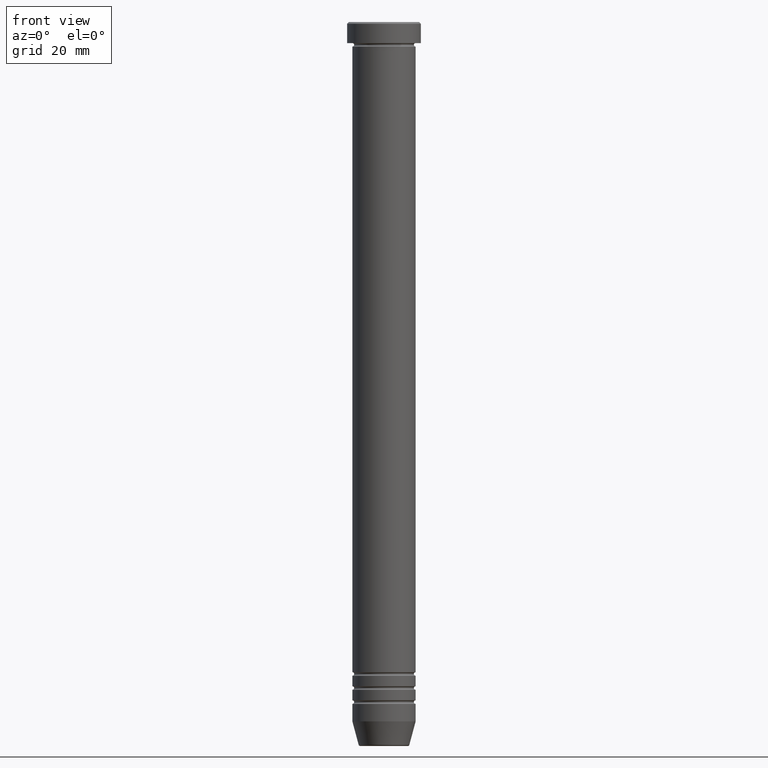
[diagram: clean part render]
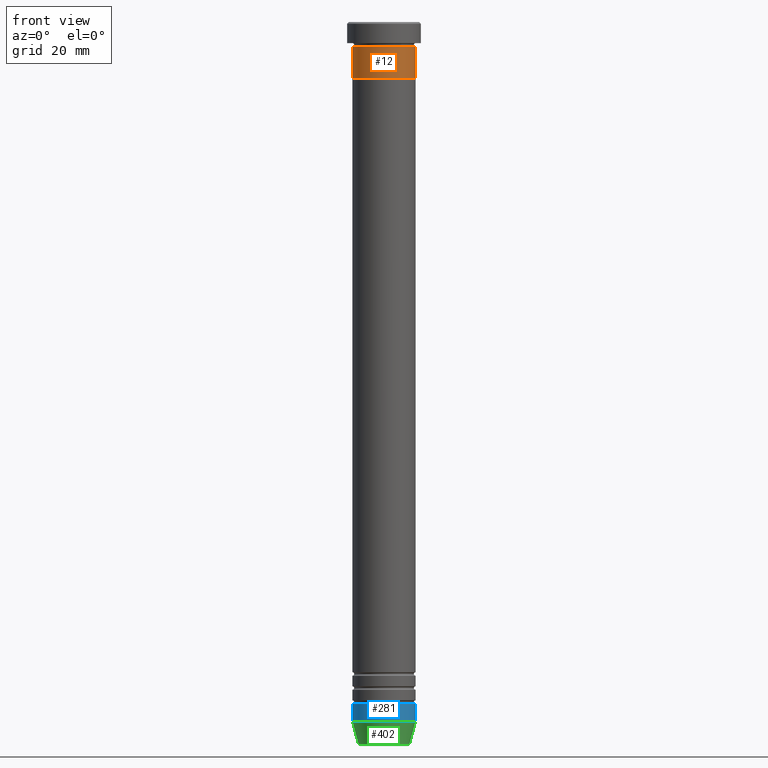
[diagram: same view with three faces highlighted in distinct colors, each labeled with its STEP entity id]
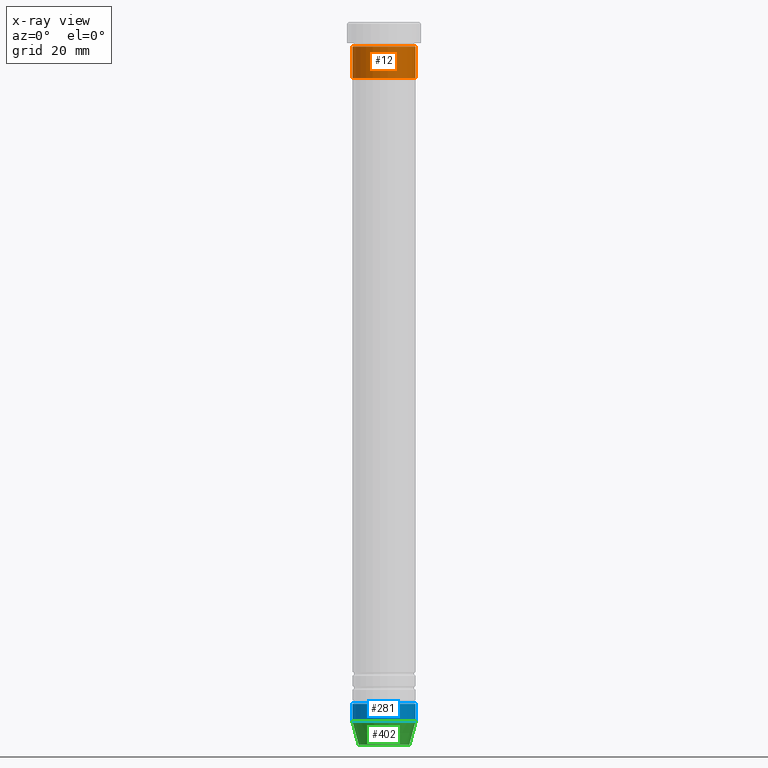
[diagram: x-ray of the same camera — body ghosted, the three highlighted faces saturated]
A machine part, front view with three faces highlighted in distinct colors.
The next image is the same camera in x-ray (body ghosted, the three faces saturated) — at least one of them is partly hidden behind the body in this view.
Their STEP definitions:

[orange] entity #12 — the highlighted cylindrical surface (edge-blend (fillet) strip) has radius 9 mm, axis along (-0, -0, 1).
#12 = ADVANCED_FACE ( 'NONE', ( #173 ), #73, .T. ) ;
#71 = DIRECTION ( 'NONE',  ( -0.000000000000000000, -0.000000000000000000, 1.000000000000000000 ) ) ;
#72 = EDGE_CURVE ( 'NONE', #343, #917, #1103, .T. ) ;
#73 = CYLINDRICAL_SURFACE ( 'NONE', #718, 9.000000000000000000 ) ;
#133 = VECTOR ( 'NONE', #71, 1000.000000000000000 ) ;
#173 = FACE_OUTER_BOUND ( 'NONE', #230, .T. ) ;
#208 = CARTESIAN_POINT ( 'NONE',  ( 9.000000000000000000, 0.000000000000000000, -16.00000000000000000 ) ) ;
#212 = ORIENTED_EDGE ( 'NONE', *, *, #815, .F. ) ;
#230 = EDGE_LOOP ( 'NONE', ( #443, #655, #996, #212 ) ) ;
#250 = VERTEX_POINT ( 'NONE', #469 ) ;
#272 = DIRECTION ( 'NONE',  ( 1.000000000000000000, 0.000000000000000000, 0.000000000000000000 ) ) ;
#309 = DIRECTION ( 'NONE',  ( 1.000000000000000000, 0.000000000000000000, 0.000000000000000000 ) ) ;
#343 = VERTEX_POINT ( 'NONE', #1025 ) ;
#350 = CARTESIAN_POINT ( 'NONE',  ( 0.000000000000000000, 0.000000000000000000, -7.000000000000000000 ) ) ;
#399 = DIRECTION ( 'NONE',  ( -0.000000000000000000, -0.000000000000000000, 1.000000000000000000 ) ) ;
#429 = CARTESIAN_POINT ( 'NONE',  ( 0.000000000000000000, 0.000000000000000000, 0.000000000000000000 ) ) ;
#443 = ORIENTED_EDGE ( 'NONE', *, *, #1129, .F. ) ;
#469 = CARTESIAN_POINT ( 'NONE',  ( 9.000000000000000000, 0.000000000000000000, -7.000000000000000000 ) ) ;
#530 = DIRECTION ( 'NONE',  ( -0.000000000000000000, -0.000000000000000000, 1.000000000000000000 ) ) ;
#572 = AXIS2_PLACEMENT_3D ( 'NONE', #350, #723, #272 ) ;
#588 = LINE ( 'NONE', #873, #133 ) ;
#594 = CARTESIAN_POINT ( 'NONE',  ( -9.000000000000000000, 1.102182119232617714E-15, 0.000000000000000000 ) ) ;
#596 = EDGE_CURVE ( 'NONE', #917, #250, #588, .T. ) ;
#606 = AXIS2_PLACEMENT_3D ( 'NONE', #1122, #399, #309 ) ;
#637 = CARTESIAN_POINT ( 'NONE',  ( -9.000000000000000000, 1.102182119232617714E-15, -7.000000000000000000 ) ) ;
#655 = ORIENTED_EDGE ( 'NONE', *, *, #72, .T. ) ;
#673 = LINE ( 'NONE', #594, #695 ) ;
#695 = VECTOR ( 'NONE', #1020, 1000.000000000000000 ) ;
#718 = AXIS2_PLACEMENT_3D ( 'NONE', #429, #530, #879 ) ;
#723 = DIRECTION ( 'NONE',  ( -0.000000000000000000, -0.000000000000000000, 1.000000000000000000 ) ) ;
#805 = VERTEX_POINT ( 'NONE', #637 ) ;
#815 = EDGE_CURVE ( 'NONE', #805, #250, #826, .T. ) ;
#826 = CIRCLE ( 'NONE', #572, 9.000000000000000000 ) ;
#873 = CARTESIAN_POINT ( 'NONE',  ( 9.000000000000000000, 0.000000000000000000, 0.000000000000000000 ) ) ;
#879 = DIRECTION ( 'NONE',  ( 1.000000000000000000, 0.000000000000000000, 0.000000000000000000 ) ) ;
#917 = VERTEX_POINT ( 'NONE', #208 ) ;
#996 = ORIENTED_EDGE ( 'NONE', *, *, #596, .T. ) ;
#1020 = DIRECTION ( 'NONE',  ( -0.000000000000000000, -0.000000000000000000, 1.000000000000000000 ) ) ;
#1025 = CARTESIAN_POINT ( 'NONE',  ( -9.000000000000000000, 1.102182119232617714E-15, -16.00000000000000000 ) ) ;
#1103 = CIRCLE ( 'NONE', #606, 9.000000000000000000 ) ;
#1122 = CARTESIAN_POINT ( 'NONE',  ( 0.000000000000000000, 0.000000000000000000, -16.00000000000000000 ) ) ;
#1129 = EDGE_CURVE ( 'NONE', #343, #805, #673, .T. ) ;

[blue] entity #281 — the highlighted cylindrical surface (edge-blend (fillet) strip) has radius 9 mm, axis along (-0, -0, 1).
#14 = CYLINDRICAL_SURFACE ( 'NONE', #502, 9.000000000000000000 ) ;
#43 = EDGE_CURVE ( 'NONE', #911, #650, #913, .T. ) ;
#59 = CARTESIAN_POINT ( 'NONE',  ( 9.000000000000000000, 0.000000000000000000, -194.0000000000000000 ) ) ;
#102 = DIRECTION ( 'NONE',  ( 1.000000000000000000, 0.000000000000000000, 0.000000000000000000 ) ) ;
#109 = CIRCLE ( 'NONE', #503, 9.000000000000000000 ) ;
#119 = DIRECTION ( 'NONE',  ( -0.000000000000000000, -0.000000000000000000, 1.000000000000000000 ) ) ;
#155 = ORIENTED_EDGE ( 'NONE', *, *, #43, .T. ) ;
#221 = EDGE_LOOP ( 'NONE', ( #1097, #1073, #155, #985 ) ) ;
#254 = CIRCLE ( 'NONE', #436, 9.000000000000000000 ) ;
#281 = ADVANCED_FACE ( 'NONE', ( #651 ), #14, .T. ) ;
#283 = CARTESIAN_POINT ( 'NONE',  ( 9.000000000000000000, 0.000000000000000000, 0.000000000000000000 ) ) ;
#298 = DIRECTION ( 'NONE',  ( -0.000000000000000000, -0.000000000000000000, 1.000000000000000000 ) ) ;
#330 = VECTOR ( 'NONE', #119, 1000.000000000000000 ) ;
#354 = DIRECTION ( 'NONE',  ( 1.000000000000000000, 0.000000000000000000, 0.000000000000000000 ) ) ;
#378 = DIRECTION ( 'NONE',  ( -0.000000000000000000, -0.000000000000000000, 1.000000000000000000 ) ) ;
#433 = CARTESIAN_POINT ( 'NONE',  ( -9.000000000000000000, 1.102182119232617714E-15, -194.0000000000000000 ) ) ;
#436 = AXIS2_PLACEMENT_3D ( 'NONE', #1077, #616, #354 ) ;
#502 = AXIS2_PLACEMENT_3D ( 'NONE', #639, #298, #102 ) ;
#503 = AXIS2_PLACEMENT_3D ( 'NONE', #901, #378, #1085 ) ;
#520 = VERTEX_POINT ( 'NONE', #895 ) ;
#522 = LINE ( 'NONE', #680, #1091 ) ;
#560 = EDGE_CURVE ( 'NONE', #520, #911, #109, .T. ) ;
#616 = DIRECTION ( 'NONE',  ( -0.000000000000000000, -0.000000000000000000, 1.000000000000000000 ) ) ;
#639 = CARTESIAN_POINT ( 'NONE',  ( 0.000000000000000000, 0.000000000000000000, 0.000000000000000000 ) ) ;
#650 = VERTEX_POINT ( 'NONE', #59 ) ;
#651 = FACE_OUTER_BOUND ( 'NONE', #221, .T. ) ;
#674 = EDGE_CURVE ( 'NONE', #520, #747, #522, .T. ) ;
#680 = CARTESIAN_POINT ( 'NONE',  ( -9.000000000000000000, 1.102182119232617714E-15, 0.000000000000000000 ) ) ;
#747 = VERTEX_POINT ( 'NONE', #433 ) ;
#767 = DIRECTION ( 'NONE',  ( -0.000000000000000000, -0.000000000000000000, 1.000000000000000000 ) ) ;
#836 = EDGE_CURVE ( 'NONE', #747, #650, #254, .T. ) ;
#895 = CARTESIAN_POINT ( 'NONE',  ( -9.000000000000000000, 1.102182119232617714E-15, -199.0000000000000000 ) ) ;
#901 = CARTESIAN_POINT ( 'NONE',  ( 0.000000000000000000, 0.000000000000000000, -199.0000000000000000 ) ) ;
#907 = CARTESIAN_POINT ( 'NONE',  ( 9.000000000000000000, 0.000000000000000000, -199.0000000000000000 ) ) ;
#911 = VERTEX_POINT ( 'NONE', #907 ) ;
#913 = LINE ( 'NONE', #283, #330 ) ;
#985 = ORIENTED_EDGE ( 'NONE', *, *, #836, .F. ) ;
#1073 = ORIENTED_EDGE ( 'NONE', *, *, #560, .T. ) ;
#1077 = CARTESIAN_POINT ( 'NONE',  ( 0.000000000000000000, 0.000000000000000000, -194.0000000000000000 ) ) ;
#1085 = DIRECTION ( 'NONE',  ( 1.000000000000000000, 0.000000000000000000, 0.000000000000000000 ) ) ;
#1091 = VECTOR ( 'NONE', #767, 1000.000000000000000 ) ;
#1097 = ORIENTED_EDGE ( 'NONE', *, *, #674, .F. ) ;

[green] entity #402 — the highlighted conical surface has half-angle 15 deg.
#47 = LINE ( 'NONE', #1016, #604 ) ;
#68 = ORIENTED_EDGE ( 'NONE', *, *, #682, .T. ) ;
#109 = CIRCLE ( 'NONE', #503, 9.000000000000000000 ) ;
#154 = CARTESIAN_POINT ( 'NONE',  ( 0.000000000000000000, 0.000000000000000000, -206.0000000000000284 ) ) ;
#189 = CARTESIAN_POINT ( 'NONE',  ( -7.223655072137196598, 9.934123627281769054E-16, -205.6294095225512990 ) ) ;
#210 = ORIENTED_EDGE ( 'NONE', *, *, #302, .F. ) ;
#211 = LINE ( 'NONE', #564, #737 ) ;
#241 = DIRECTION ( 'NONE',  ( 0.2588190451025205729, 0.000000000000000000, 0.9659258262890683122 ) ) ;
#302 = EDGE_CURVE ( 'NONE', #838, #520, #211, .T. ) ;
#374 = VERTEX_POINT ( 'NONE', #928 ) ;
#378 = DIRECTION ( 'NONE',  ( -0.000000000000000000, -0.000000000000000000, 1.000000000000000000 ) ) ;
#391 = EDGE_LOOP ( 'NONE', ( #210, #68, #1126, #870 ) ) ;
#402 = ADVANCED_FACE ( 'NONE', ( #943 ), #847, .T. ) ;
#411 = DIRECTION ( 'NONE',  ( 1.000000000000000000, 0.000000000000000000, 0.000000000000000000 ) ) ;
#428 = CARTESIAN_POINT ( 'NONE',  ( 0.000000000000000000, 0.000000000000000000, -205.6294095225512990 ) ) ;
#503 = AXIS2_PLACEMENT_3D ( 'NONE', #901, #378, #1085 ) ;
#509 = DIRECTION ( 'NONE',  ( -0.000000000000000000, -0.000000000000000000, 1.000000000000000000 ) ) ;
#520 = VERTEX_POINT ( 'NONE', #895 ) ;
#560 = EDGE_CURVE ( 'NONE', #520, #911, #109, .T. ) ;
#564 = CARTESIAN_POINT ( 'NONE',  ( -7.124355652982139908, 8.724819346411930032E-16, -206.0000000000000284 ) ) ;
#568 = DIRECTION ( 'NONE',  ( -0.2588190451025205729, 3.169619151431761860E-17, 0.9659258262890683122 ) ) ;
#604 = VECTOR ( 'NONE', #241, 1000.000000000000114 ) ;
#645 = AXIS2_PLACEMENT_3D ( 'NONE', #154, #509, #411 ) ;
#682 = EDGE_CURVE ( 'NONE', #838, #374, #889, .T. ) ;
#696 = DIRECTION ( 'NONE',  ( -1.000000000000000000, 0.000000000000000000, 0.000000000000000000 ) ) ;
#737 = VECTOR ( 'NONE', #568, 1000.000000000000114 ) ;
#838 = VERTEX_POINT ( 'NONE', #189 ) ;
#847 = CONICAL_SURFACE ( 'NONE', #645, 7.124355652982139908, 0.2617993877991492413 ) ;
#870 = ORIENTED_EDGE ( 'NONE', *, *, #560, .F. ) ;
#889 = CIRCLE ( 'NONE', #926, 7.223655072137196598 ) ;
#895 = CARTESIAN_POINT ( 'NONE',  ( -9.000000000000000000, 1.102182119232617714E-15, -199.0000000000000000 ) ) ;
#901 = CARTESIAN_POINT ( 'NONE',  ( 0.000000000000000000, 0.000000000000000000, -199.0000000000000000 ) ) ;
#907 = CARTESIAN_POINT ( 'NONE',  ( 9.000000000000000000, 0.000000000000000000, -199.0000000000000000 ) ) ;
#911 = VERTEX_POINT ( 'NONE', #907 ) ;
#926 = AXIS2_PLACEMENT_3D ( 'NONE', #428, #1030, #696 ) ;
#928 = CARTESIAN_POINT ( 'NONE',  ( 7.223655072137196598, 0.000000000000000000, -205.6294095225512990 ) ) ;
#943 = FACE_OUTER_BOUND ( 'NONE', #391, .T. ) ;
#1016 = CARTESIAN_POINT ( 'NONE',  ( 7.124355652982139908, 0.000000000000000000, -206.0000000000000284 ) ) ;
#1030 = DIRECTION ( 'NONE',  ( -0.000000000000000000, -0.000000000000000000, 1.000000000000000000 ) ) ;
#1085 = DIRECTION ( 'NONE',  ( 1.000000000000000000, 0.000000000000000000, 0.000000000000000000 ) ) ;
#1093 = EDGE_CURVE ( 'NONE', #374, #911, #47, .T. ) ;
#1126 = ORIENTED_EDGE ( 'NONE', *, *, #1093, .T. ) ;